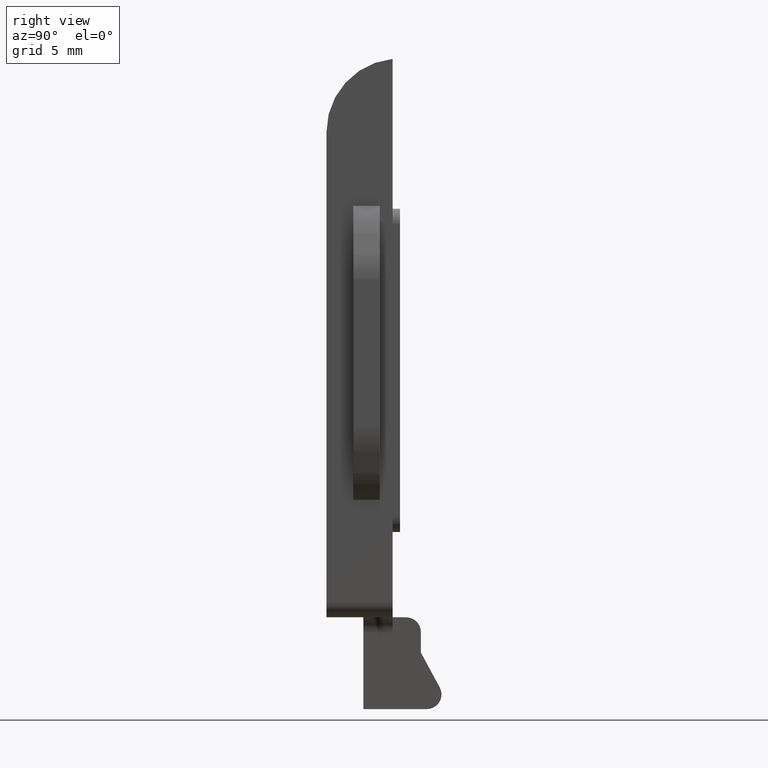
[diagram: clean part render]
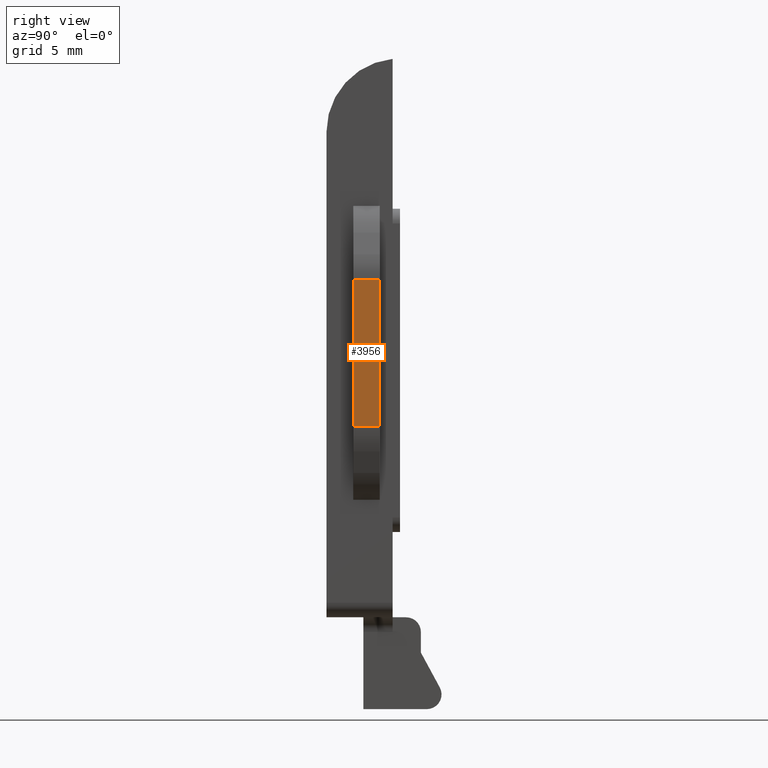
[diagram: same view with one face highlighted and labeled with its STEP entity id]
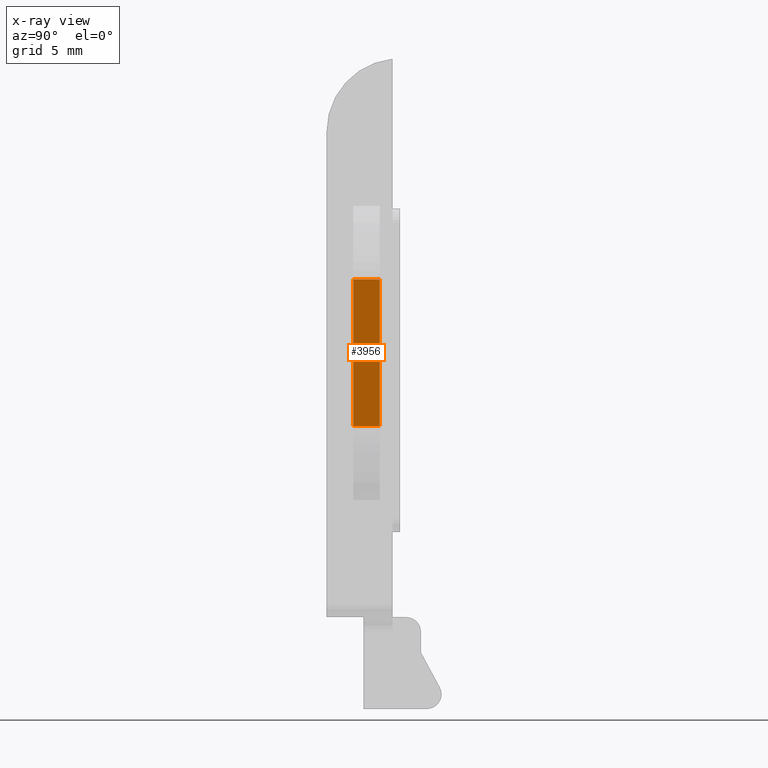
[diagram: x-ray of the same camera — body ghosted, the highlighted face saturated]
A machine part, right view. The second image highlights one B-rep face of the part: STEP entity #3956.
The next image is the same camera in x-ray: the body ghosted, the highlighted face saturated — about 0% of this face is hidden behind the body in this view.
In plain terms, the highlighted planar face has unit normal (1, 0, 0).
Its self-contained STEP definition (entity closure, byte-faithful):
#132 = DIRECTION ( 'NONE',  ( 0.000000000000000000, -1.301042606982605321E-16, 1.000000000000000000 ) ) ;
#414 = VECTOR ( 'NONE', #12068, 1000.000000000000000 ) ;
#570 = VECTOR ( 'NONE', #132, 1000.000000000000000 ) ;
#935 = VECTOR ( 'NONE', #11774, 1000.000000000000000 ) ;
#1113 = CARTESIAN_POINT ( 'NONE',  ( 10.69999999999999929, 3.624999999999998668, 22.99714896727577695 ) ) ;
#1234 = AXIS2_PLACEMENT_3D ( 'NONE', #8114, #15801, #13088 ) ;
#2010 = VECTOR ( 'NONE', #2184, 1000.000000000000000 ) ;
#2017 = EDGE_CURVE ( 'NONE', #3382, #16006, #6054, .T. ) ;
#2181 = CARTESIAN_POINT ( 'NONE',  ( 10.69999999999999929, 1.824999999999997957, 22.99714896727577695 ) ) ;
#2184 = DIRECTION ( 'NONE',  ( 0.000000000000000000, 0.000000000000000000, -1.000000000000000000 ) ) ;
#2687 = ORIENTED_EDGE ( 'NONE', *, *, #2017, .T. ) ;
#2928 = CARTESIAN_POINT ( 'NONE',  ( 10.69999999999999929, 0.000000000000000000, 13.00285103272426213 ) ) ;
#3382 = VERTEX_POINT ( 'NONE', #6732 ) ;
#3917 = ORIENTED_EDGE ( 'NONE', *, *, #11699, .T. ) ;
#3956 = ADVANCED_FACE ( 'NONE', ( #4635 ), #11821, .T. ) ;
#4082 = ORIENTED_EDGE ( 'NONE', *, *, #8925, .T. ) ;
#4390 = CARTESIAN_POINT ( 'NONE',  ( 10.69999999999999929, 0.000000000000000000, 22.99714896727577695 ) ) ;
#4635 = FACE_OUTER_BOUND ( 'NONE', #13924, .T. ) ;
#5144 = LINE ( 'NONE', #4390, #414 ) ;
#5504 = LINE ( 'NONE', #11172, #570 ) ;
#6054 = LINE ( 'NONE', #2928, #935 ) ;
#6732 = CARTESIAN_POINT ( 'NONE',  ( 10.69999999999999929, 1.824999999999997957, 13.00285103272426213 ) ) ;
#7914 = EDGE_CURVE ( 'NONE', #15345, #3382, #11101, .T. ) ;
#8114 = CARTESIAN_POINT ( 'NONE',  ( 10.69999999999999929, 0.000000000000000000, 0.000000000000000000 ) ) ;
#8925 = EDGE_CURVE ( 'NONE', #13462, #15345, #5144, .T. ) ;
#11101 = LINE ( 'NONE', #16276, #2010 ) ;
#11172 = CARTESIAN_POINT ( 'NONE',  ( 10.69999999999999929, 3.625000000000000444, 8.000000000000000000 ) ) ;
#11699 = EDGE_CURVE ( 'NONE', #16006, #13462, #5504, .T. ) ;
#11774 = DIRECTION ( 'NONE',  ( -0.000000000000000000, 1.000000000000000000, 0.000000000000000000 ) ) ;
#11821 = PLANE ( 'NONE',  #1234 ) ;
#12068 = DIRECTION ( 'NONE',  ( 0.000000000000000000, -1.000000000000000000, 0.000000000000000000 ) ) ;
#12169 = CARTESIAN_POINT ( 'NONE',  ( 10.69999999999999929, 3.624999999999999556, 13.00285103272426213 ) ) ;
#12185 = ORIENTED_EDGE ( 'NONE', *, *, #7914, .T. ) ;
#13088 = DIRECTION ( 'NONE',  ( 0.000000000000000000, 0.000000000000000000, -1.000000000000000000 ) ) ;
#13462 = VERTEX_POINT ( 'NONE', #1113 ) ;
#13924 = EDGE_LOOP ( 'NONE', ( #12185, #2687, #3917, #4082 ) ) ;
#15345 = VERTEX_POINT ( 'NONE', #2181 ) ;
#15801 = DIRECTION ( 'NONE',  ( 1.000000000000000000, 0.000000000000000000, 0.000000000000000000 ) ) ;
#16006 = VERTEX_POINT ( 'NONE', #12169 ) ;
#16276 = CARTESIAN_POINT ( 'NONE',  ( 10.69999999999999929, 1.824999999999997957, 28.00000000000000000 ) ) ;